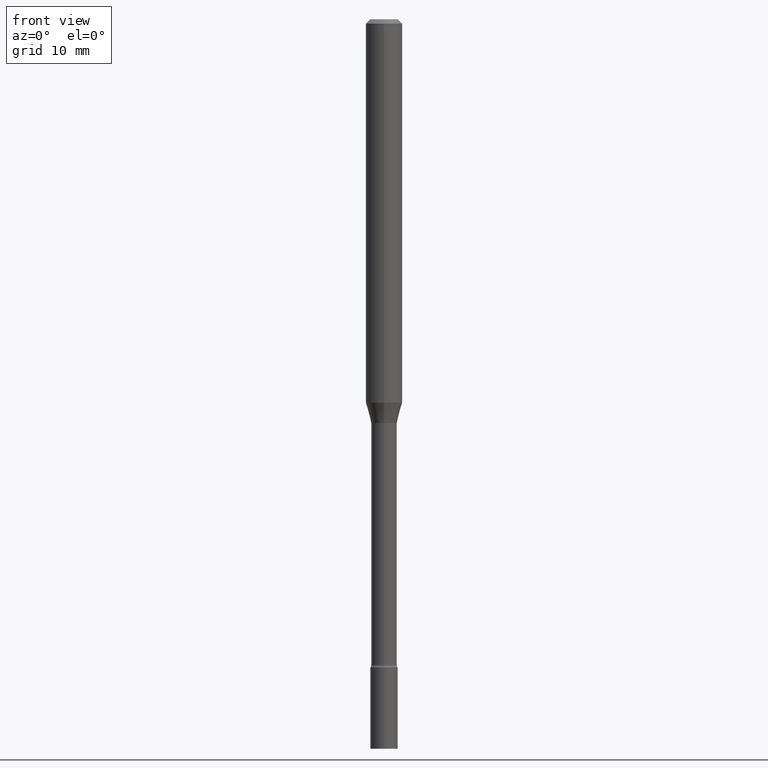
[diagram: clean part render]
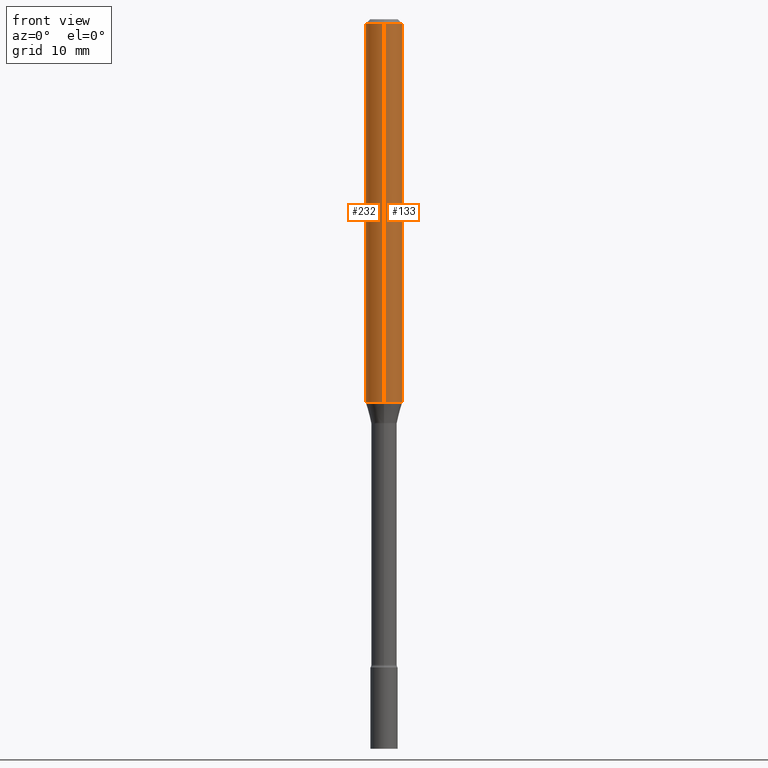
[diagram: same view with one multi-face feature highlighted, each face labeled with its STEP entity id]
A machine part, front view. The highlighted faces form ONE feature: a constant-radius fillet chain: 2 tangent blend faces with common blend radius 1.5875 mm. The faces share edges in the B-rep.
Their STEP definitions:
[1] entity #133 (Cylinder):
#12 = DIRECTION ( 'NONE',  ( -2.445481056688412626E-29, 3.491463795425199032E-15, 1.000000000000000000 ) ) ;
#14 = DIRECTION ( 'NONE',  ( -2.445481056688412626E-29, 3.491463795425199032E-15, 1.000000000000000000 ) ) ;
#18 = VERTEX_POINT ( 'NONE', #358 ) ;
#27 = EDGE_CURVE ( 'NONE', #509, #353, #191, .T. ) ;
#32 = DIRECTION ( 'NONE',  ( -2.445481056688412626E-29, 3.491463795425199032E-15, 1.000000000000000000 ) ) ;
#53 = DIRECTION ( 'NONE',  ( -6.982962677686265922E-15, -1.000000000000000000, 3.491463795425199032E-15 ) ) ;
#101 = DIRECTION ( 'NONE',  ( -6.982962677686265922E-15, -1.000000000000000000, 4.370956789862821150E-15 ) ) ;
#115 = DIRECTION ( 'NONE',  ( -2.445481056688412626E-29, 3.491463795425199032E-15, 1.000000000000000000 ) ) ;
#128 = CYLINDRICAL_SURFACE ( 'NONE', #263, 0.06250000000000000000 ) ;
#133 = ADVANCED_FACE ( 'NONE', ( #498 ), #128, .T. ) ;
#134 = CARTESIAN_POINT ( 'NONE',  ( 0.000000000000000000, 0.000000000000000000, 0.000000000000000000 ) ) ;
#145 = CARTESIAN_POINT ( 'NONE',  ( 3.212964582869606003E-29, -4.587215871654971383E-15, -1.313837444817705258 ) ) ;
#161 = DIRECTION ( 'NONE',  ( -2.445481056688412626E-29, 3.491463795425199032E-15, 1.000000000000000000 ) ) ;
#187 = CARTESIAN_POINT ( 'NONE',  ( -4.364351673553916201E-16, -0.06250000000000000000, 2.182164872140749395E-16 ) ) ;
#191 = CIRCLE ( 'NONE', #218, 0.06250000000000000000 ) ;
#205 = ORIENTED_EDGE ( 'NONE', *, *, #376, .F. ) ;
#213 = ORIENTED_EDGE ( 'NONE', *, *, #27, .T. ) ;
#218 = AXIS2_PLACEMENT_3D ( 'NONE', #145, #32, #101 ) ;
#243 = DIRECTION ( 'NONE',  ( -6.982962677686265922E-15, -1.000000000000000000, 3.483106191921935554E-15 ) ) ;
#250 = LINE ( 'NONE', #494, #475 ) ;
#255 = VERTEX_POINT ( 'NONE', #459 ) ;
#263 = AXIS2_PLACEMENT_3D ( 'NONE', #134, #12, #53 ) ;
#276 = LINE ( 'NONE', #187, #394 ) ;
#282 = ORIENTED_EDGE ( 'NONE', *, *, #306, .T. ) ;
#289 = CARTESIAN_POINT ( 'NONE',  ( -4.364351673553592768E-16, -0.06250000000000455191, -1.313837444817705036 ) ) ;
#306 = EDGE_CURVE ( 'NONE', #353, #18, #250, .T. ) ;
#320 = AXIS2_PLACEMENT_3D ( 'NONE', #327, #161, #243 ) ;
#327 = CARTESIAN_POINT ( 'NONE',  ( 3.668221585032625928E-31, -5.237195693137808926E-17, -0.01500000000000003067 ) ) ;
#347 = CIRCLE ( 'NONE', #320, 0.06250000000000000000 ) ;
#353 = VERTEX_POINT ( 'NONE', #380 ) ;
#358 = CARTESIAN_POINT ( 'NONE',  ( 4.440892098500949595E-16, 0.06249999999999995837, -0.01500000000000024751 ) ) ;
#376 = EDGE_CURVE ( 'NONE', #255, #18, #347, .T. ) ;
#380 = CARTESIAN_POINT ( 'NONE',  ( 4.440892098500948609E-16, 0.06249999999999544115, -1.313837444817705702 ) ) ;
#394 = VECTOR ( 'NONE', #115, 39.37007874015748143 ) ;
#421 = EDGE_LOOP ( 'NONE', ( #213, #282, #205, #472 ) ) ;
#430 = EDGE_CURVE ( 'NONE', #509, #255, #276, .T. ) ;
#459 = CARTESIAN_POINT ( 'NONE',  ( -4.364351673553912750E-16, -0.06250000000000005551, -0.01499999999999981209 ) ) ;
#472 = ORIENTED_EDGE ( 'NONE', *, *, #430, .F. ) ;
#475 = VECTOR ( 'NONE', #14, 39.37007874015748143 ) ;
#494 = CARTESIAN_POINT ( 'NONE',  ( 4.440892098500625669E-16, 0.06250000000000000000, -2.182164872140749395E-16 ) ) ;
#498 = FACE_OUTER_BOUND ( 'NONE', #421, .T. ) ;
#509 = VERTEX_POINT ( 'NONE', #289 ) ;
[2] entity #232 (Cylinder):
#14 = DIRECTION ( 'NONE',  ( -2.445481056688412626E-29, 3.491463795425199032E-15, 1.000000000000000000 ) ) ;
#18 = VERTEX_POINT ( 'NONE', #358 ) ;
#56 = DIRECTION ( 'NONE',  ( -2.445481056688412626E-29, 3.491463795425199032E-15, 1.000000000000000000 ) ) ;
#86 = ORIENTED_EDGE ( 'NONE', *, *, #227, .T. ) ;
#107 = CIRCLE ( 'NONE', #272, 0.06250000000000000000 ) ;
#115 = DIRECTION ( 'NONE',  ( -2.445481056688412626E-29, 3.491463795425199032E-15, 1.000000000000000000 ) ) ;
#127 = ORIENTED_EDGE ( 'NONE', *, *, #324, .F. ) ;
#131 = DIRECTION ( 'NONE',  ( -2.445481056688412626E-29, 3.491463795425199032E-15, 1.000000000000000000 ) ) ;
#138 = CARTESIAN_POINT ( 'NONE',  ( 3.212964582869606003E-29, -4.587215871654971383E-15, -1.313837444817705258 ) ) ;
#157 = AXIS2_PLACEMENT_3D ( 'NONE', #238, #131, #284 ) ;
#163 = CYLINDRICAL_SURFACE ( 'NONE', #408, 0.06250000000000000000 ) ;
#187 = CARTESIAN_POINT ( 'NONE',  ( -4.364351673553916201E-16, -0.06250000000000000000, 2.182164872140749395E-16 ) ) ;
#214 = CARTESIAN_POINT ( 'NONE',  ( 0.000000000000000000, 0.000000000000000000, 0.000000000000000000 ) ) ;
#227 = EDGE_CURVE ( 'NONE', #353, #509, #107, .T. ) ;
#232 = ADVANCED_FACE ( 'NONE', ( #463 ), #163, .T. ) ;
#238 = CARTESIAN_POINT ( 'NONE',  ( 3.668221585032625928E-31, -5.237195693137808926E-17, -0.01500000000000003067 ) ) ;
#250 = LINE ( 'NONE', #494, #475 ) ;
#252 = DIRECTION ( 'NONE',  ( -6.982962677686265922E-15, -1.000000000000000000, 4.370956789862821150E-15 ) ) ;
#255 = VERTEX_POINT ( 'NONE', #459 ) ;
#268 = ORIENTED_EDGE ( 'NONE', *, *, #430, .T. ) ;
#272 = AXIS2_PLACEMENT_3D ( 'NONE', #138, #414, #252 ) ;
#276 = LINE ( 'NONE', #187, #394 ) ;
#284 = DIRECTION ( 'NONE',  ( -6.982962677686265922E-15, -1.000000000000000000, 3.483106191921935554E-15 ) ) ;
#289 = CARTESIAN_POINT ( 'NONE',  ( -4.364351673553592768E-16, -0.06250000000000455191, -1.313837444817705036 ) ) ;
#294 = ORIENTED_EDGE ( 'NONE', *, *, #306, .F. ) ;
#298 = DIRECTION ( 'NONE',  ( -6.982962677686265922E-15, -1.000000000000000000, 3.491463795425199032E-15 ) ) ;
#306 = EDGE_CURVE ( 'NONE', #353, #18, #250, .T. ) ;
#324 = EDGE_CURVE ( 'NONE', #18, #255, #372, .T. ) ;
#333 = EDGE_LOOP ( 'NONE', ( #294, #86, #268, #127 ) ) ;
#353 = VERTEX_POINT ( 'NONE', #380 ) ;
#358 = CARTESIAN_POINT ( 'NONE',  ( 4.440892098500949595E-16, 0.06249999999999995837, -0.01500000000000024751 ) ) ;
#372 = CIRCLE ( 'NONE', #157, 0.06250000000000000000 ) ;
#380 = CARTESIAN_POINT ( 'NONE',  ( 4.440892098500948609E-16, 0.06249999999999544115, -1.313837444817705702 ) ) ;
#394 = VECTOR ( 'NONE', #115, 39.37007874015748143 ) ;
#408 = AXIS2_PLACEMENT_3D ( 'NONE', #214, #56, #298 ) ;
#414 = DIRECTION ( 'NONE',  ( -2.445481056688412626E-29, 3.491463795425199032E-15, 1.000000000000000000 ) ) ;
#430 = EDGE_CURVE ( 'NONE', #509, #255, #276, .T. ) ;
#459 = CARTESIAN_POINT ( 'NONE',  ( -4.364351673553912750E-16, -0.06250000000000005551, -0.01499999999999981209 ) ) ;
#463 = FACE_OUTER_BOUND ( 'NONE', #333, .T. ) ;
#475 = VECTOR ( 'NONE', #14, 39.37007874015748143 ) ;
#494 = CARTESIAN_POINT ( 'NONE',  ( 4.440892098500625669E-16, 0.06250000000000000000, -2.182164872140749395E-16 ) ) ;
#509 = VERTEX_POINT ( 'NONE', #289 ) ;